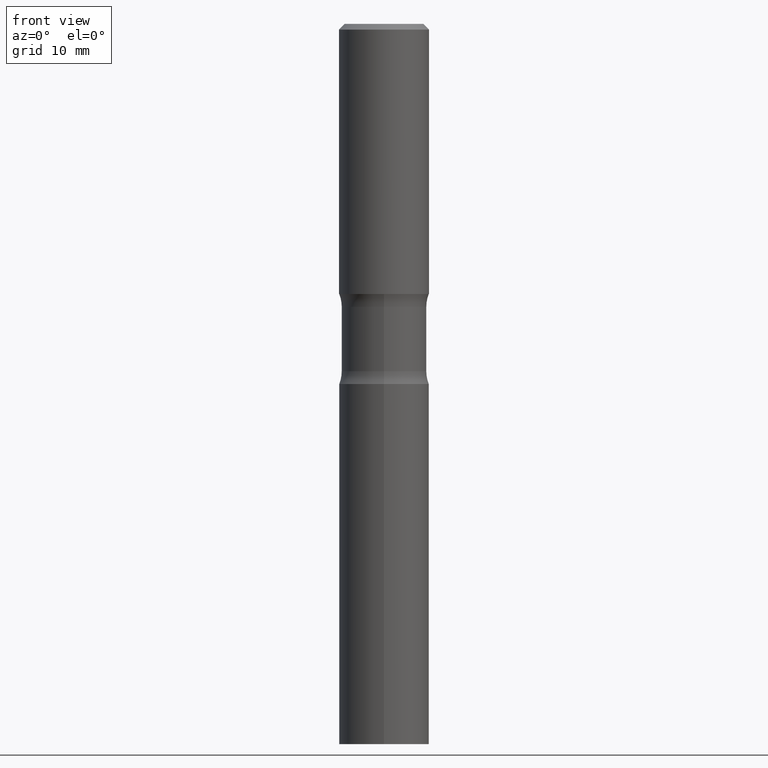
[diagram: clean part render]
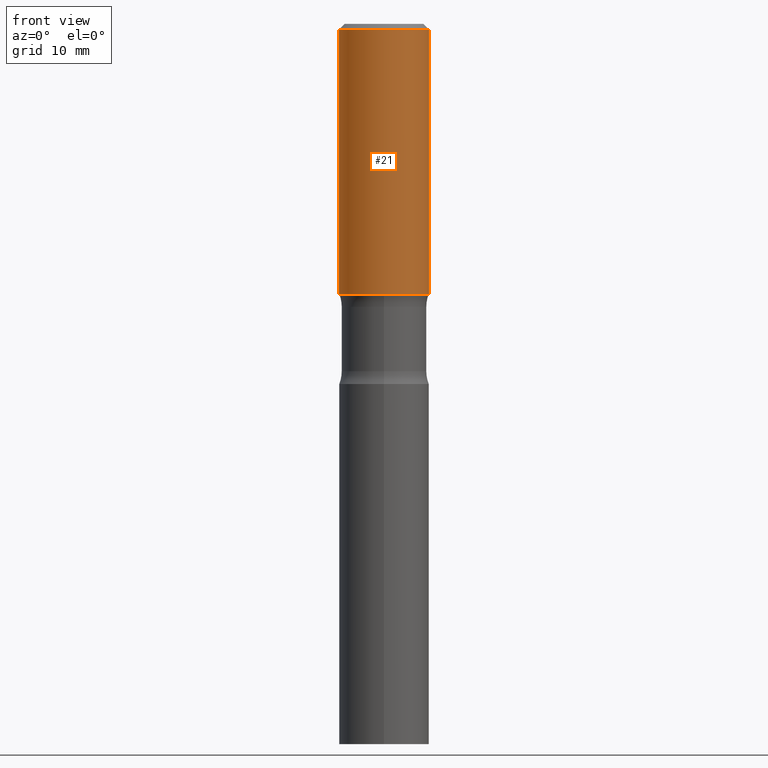
[diagram: same view with one face highlighted and labeled with its STEP entity id]
A machine part, front view. The second image highlights one B-rep face of the part: STEP entity #21.
In plain terms, the highlighted cylindrical surface (partial cylindrical patch) has radius 4.0005 mm, axis along (-0, 0, 1).
Its self-contained STEP definition (entity closure, byte-faithful):
#16 = CARTESIAN_POINT ( 'NONE',  ( -0.1574999999999999178, 1.119104808822157209E-15, -7.747322767151472781E-30 ) ) ;
#21 = ADVANCED_FACE ( 'NONE', ( #389 ), #316, .T. ) ;
#59 = LINE ( 'NONE', #16, #500 ) ;
#60 = CARTESIAN_POINT ( 'NONE',  ( 0.1574999999999999178, -1.099816621735586494E-15, 7.679978421878595230E-30 ) ) ;
#79 = EDGE_CURVE ( 'NONE', #109, #337, #59, .T. ) ;
#82 = AXIS2_PLACEMENT_3D ( 'NONE', #235, #393, #344 ) ;
#109 = VERTEX_POINT ( 'NONE', #290 ) ;
#118 = DIRECTION ( 'NONE',  ( 1.000000000000000000, -6.982962677686266711E-15, 4.876176775795935793E-29 ) ) ;
#131 = CARTESIAN_POINT ( 'NONE',  ( 0.1574999999999998623, -1.150358061425878289E-15, -0.02000000000000003511 ) ) ;
#155 = CARTESIAN_POINT ( 'NONE',  ( 0.000000000000000000, 0.000000000000000000, 0.000000000000000000 ) ) ;
#158 = CARTESIAN_POINT ( 'NONE',  ( 4.890937612370281041E-31, -6.982962677686302702E-17, -0.02000000000000003511 ) ) ;
#170 = CIRCLE ( 'NONE', #82, 0.1575000000000000011 ) ;
#175 = ORIENTED_EDGE ( 'NONE', *, *, #481, .T. ) ;
#188 = DIRECTION ( 'NONE',  ( -2.445468806185136597E-29, 3.491481338843145583E-15, 1.000000000000000000 ) ) ;
#200 = DIRECTION ( 'NONE',  ( -2.445468806185136877E-29, 3.491481338843145188E-15, 1.000000000000000000 ) ) ;
#206 = DIRECTION ( 'NONE',  ( -2.445468806185136877E-29, 3.491481338843145188E-15, 1.000000000000000000 ) ) ;
#235 = CARTESIAN_POINT ( 'NONE',  ( 2.310723474964335154E-29, -3.299100717072887606E-15, -0.9448999999999998511 ) ) ;
#240 = LINE ( 'NONE', #60, #505 ) ;
#257 = EDGE_LOOP ( 'NONE', ( #339, #477, #175, #318 ) ) ;
#290 = CARTESIAN_POINT ( 'NONE',  ( -0.1575000000000000011, -5.653603631027165669E-16, -0.9448999999999998511 ) ) ;
#294 = VERTEX_POINT ( 'NONE', #131 ) ;
#307 = DIRECTION ( 'NONE',  ( -2.445468806185136597E-29, 3.491481338843145583E-15, 1.000000000000000000 ) ) ;
#312 = VERTEX_POINT ( 'NONE', #376 ) ;
#316 = CYLINDRICAL_SURFACE ( 'NONE', #357, 0.1574999999999999178 ) ;
#318 = ORIENTED_EDGE ( 'NONE', *, *, #388, .F. ) ;
#337 = VERTEX_POINT ( 'NONE', #487 ) ;
#339 = ORIENTED_EDGE ( 'NONE', *, *, #79, .F. ) ;
#344 = DIRECTION ( 'NONE',  ( 1.000000000000000000, -6.982962677686268288E-15, 0.000000000000000000 ) ) ;
#357 = AXIS2_PLACEMENT_3D ( 'NONE', #155, #307, #118 ) ;
#369 = EDGE_CURVE ( 'NONE', #109, #312, #170, .T. ) ;
#376 = CARTESIAN_POINT ( 'NONE',  ( 0.1575000000000000011, -4.398917338808475087E-15, -0.9448999999999998511 ) ) ;
#378 = AXIS2_PLACEMENT_3D ( 'NONE', #158, #188, #397 ) ;
#388 = EDGE_CURVE ( 'NONE', #337, #294, #504, .T. ) ;
#389 = FACE_OUTER_BOUND ( 'NONE', #257, .T. ) ;
#393 = DIRECTION ( 'NONE',  ( -2.445468806185136597E-29, 3.491481338843145583E-15, 1.000000000000000000 ) ) ;
#397 = DIRECTION ( 'NONE',  ( 1.000000000000000000, -6.982962677686266711E-15, 0.000000000000000000 ) ) ;
#477 = ORIENTED_EDGE ( 'NONE', *, *, #369, .T. ) ;
#481 = EDGE_CURVE ( 'NONE', #312, #294, #240, .T. ) ;
#487 = CARTESIAN_POINT ( 'NONE',  ( -0.1574999999999998623, 1.029986994958722999E-15, -0.02000000000000003511 ) ) ;
#500 = VECTOR ( 'NONE', #200, 39.37007874015748143 ) ;
#504 = CIRCLE ( 'NONE', #378, 0.1574999999999998623 ) ;
#505 = VECTOR ( 'NONE', #206, 39.37007874015748143 ) ;